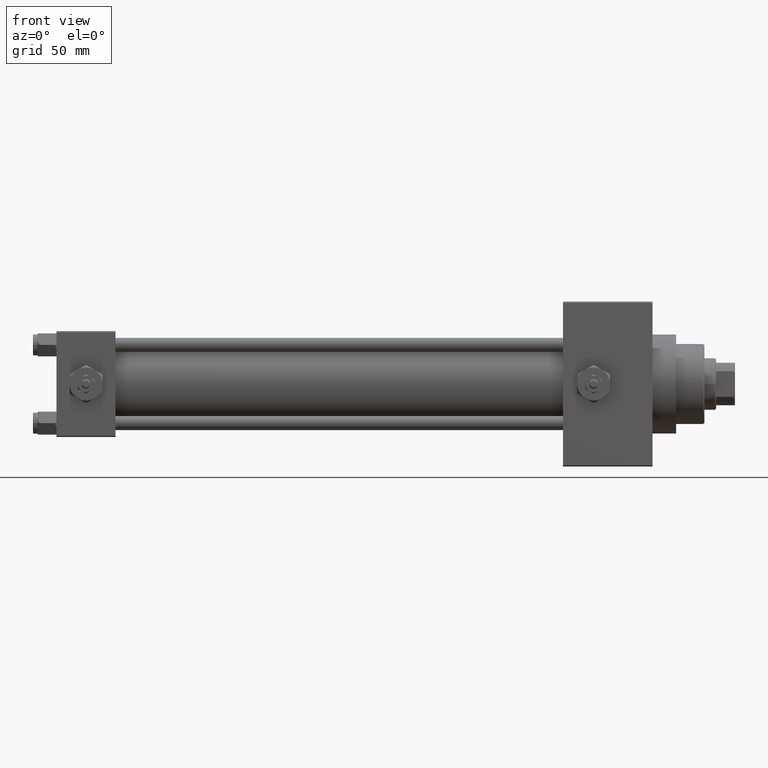
[diagram: clean part render]
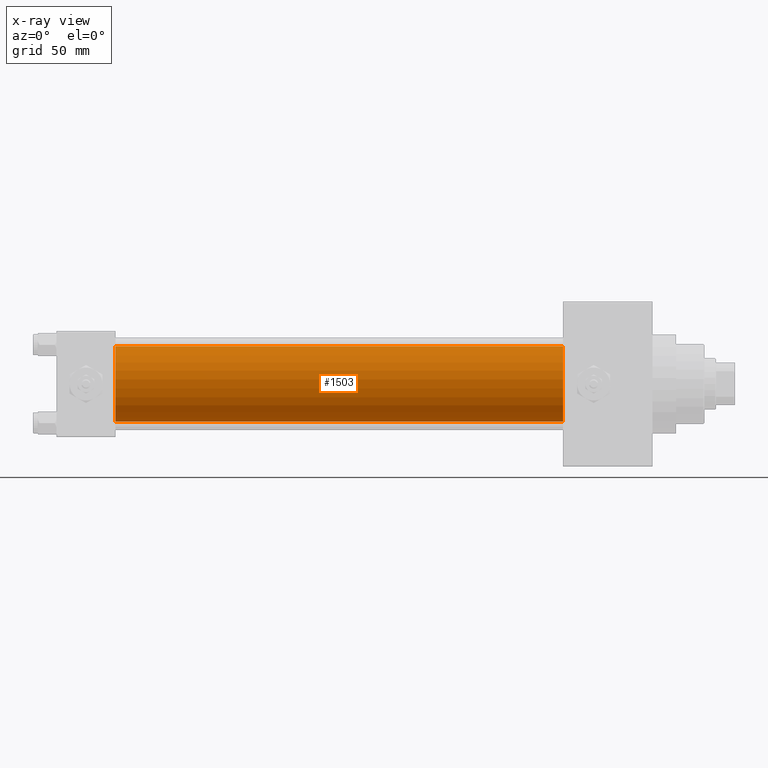
[diagram: x-ray — body ghosted, one internal face saturated and labeled with its STEP entity id]
A machine part, front view, then the same camera in x-ray: the body is ghosted and one INTERNAL B-rep face — a face not visible from any outside direction — is saturated and labeled: STEP entity #1503.
In plain terms, the highlighted cylindrical surface (partial cylindrical patch) has radius 16 mm, axis along (-1, -0, -0).
Its self-contained STEP definition (entity closure, byte-faithful):
#855 = CARTESIAN_POINT ( 'NONE',  ( 215.0000000000000000, -2.602085213965210642E-15, 16.00000000000000000 ) ) ;
#1503 = ADVANCED_FACE ( 'NONE', ( #45730 ), #41516, .F. ) ;
#2439 = LINE ( 'NONE', #28504, #48775 ) ;
#4658 = EDGE_CURVE ( 'NONE', #20282, #4726, #4925, .T. ) ;
#4726 = VERTEX_POINT ( 'NONE', #37308 ) ;
#4925 = CIRCLE ( 'NONE', #39001, 16.00000000000000000 ) ;
#6555 = DIRECTION ( 'NONE',  ( 1.000000000000000000, 0.000000000000000000, 0.000000000000000000 ) ) ;
#8464 = VERTEX_POINT ( 'NONE', #23066 ) ;
#10350 = DIRECTION ( 'NONE',  ( 0.000000000000000000, 0.000000000000000000, -1.000000000000000000 ) ) ;
#11496 = ORIENTED_EDGE ( 'NONE', *, *, #4658, .F. ) ;
#11708 = DIRECTION ( 'NONE',  ( 0.000000000000000000, 0.000000000000000000, 1.000000000000000000 ) ) ;
#13835 = CARTESIAN_POINT ( 'NONE',  ( 215.0000000000000000, -2.602085213965210642E-15, 0.000000000000000000 ) ) ;
#15101 = CIRCLE ( 'NONE', #21438, 16.00000000000000000 ) ;
#16079 = EDGE_CURVE ( 'NONE', #8464, #4726, #2439, .T. ) ;
#17276 = CARTESIAN_POINT ( 'NONE',  ( 25.00000000000000000, -2.602085213965210642E-15, 16.00000000000000000 ) ) ;
#17557 = DIRECTION ( 'NONE',  ( -1.000000000000000000, -0.000000000000000000, -0.000000000000000000 ) ) ;
#18029 = DIRECTION ( 'NONE',  ( 1.000000000000000000, 0.000000000000000000, 0.000000000000000000 ) ) ;
#18387 = VECTOR ( 'NONE', #38334, 1000.000000000000000 ) ;
#20282 = VERTEX_POINT ( 'NONE', #17276 ) ;
#21438 = AXIS2_PLACEMENT_3D ( 'NONE', #13835, #18029, #10350 ) ;
#23066 = CARTESIAN_POINT ( 'NONE',  ( 215.0000000000000000, -6.426503353294456087E-16, -16.00000000000000000 ) ) ;
#23186 = LINE ( 'NONE', #855, #18387 ) ;
#23613 = CARTESIAN_POINT ( 'NONE',  ( 215.0000000000000000, -2.602085213965210642E-15, 0.000000000000000000 ) ) ;
#26332 = AXIS2_PLACEMENT_3D ( 'NONE', #23613, #34291, #11708 ) ;
#28504 = CARTESIAN_POINT ( 'NONE',  ( 215.0000000000000000, -6.426503353294456087E-16, -16.00000000000000000 ) ) ;
#31462 = ORIENTED_EDGE ( 'NONE', *, *, #39064, .T. ) ;
#32621 = CARTESIAN_POINT ( 'NONE',  ( 25.00000000000000000, -2.602085213965210642E-15, 0.000000000000000000 ) ) ;
#33782 = EDGE_LOOP ( 'NONE', ( #31462, #48902, #11496, #48489 ) ) ;
#34291 = DIRECTION ( 'NONE',  ( -1.000000000000000000, -0.000000000000000000, -0.000000000000000000 ) ) ;
#36825 = DIRECTION ( 'NONE',  ( 0.000000000000000000, 0.000000000000000000, -1.000000000000000000 ) ) ;
#37308 = CARTESIAN_POINT ( 'NONE',  ( 25.00000000000000000, -6.426503353294456087E-16, -16.00000000000000000 ) ) ;
#38334 = DIRECTION ( 'NONE',  ( -1.000000000000000000, -0.000000000000000000, -0.000000000000000000 ) ) ;
#39001 = AXIS2_PLACEMENT_3D ( 'NONE', #32621, #6555, #36825 ) ;
#39064 = EDGE_CURVE ( 'NONE', #45413, #8464, #15101, .T. ) ;
#41516 = CYLINDRICAL_SURFACE ( 'NONE', #26332, 16.00000000000000000 ) ;
#42752 = EDGE_CURVE ( 'NONE', #45413, #20282, #23186, .T. ) ;
#43034 = CARTESIAN_POINT ( 'NONE',  ( 215.0000000000000000, -2.602085213965210642E-15, 16.00000000000000000 ) ) ;
#45413 = VERTEX_POINT ( 'NONE', #43034 ) ;
#45730 = FACE_OUTER_BOUND ( 'NONE', #33782, .T. ) ;
#48489 = ORIENTED_EDGE ( 'NONE', *, *, #42752, .F. ) ;
#48775 = VECTOR ( 'NONE', #17557, 1000.000000000000000 ) ;
#48902 = ORIENTED_EDGE ( 'NONE', *, *, #16079, .T. ) ;